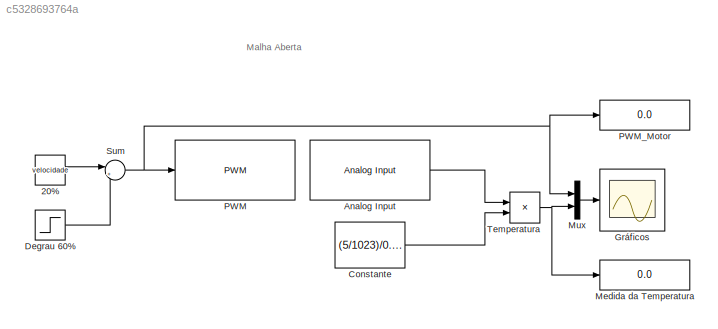
MODEL slx_c5328693764a
KIND model
CONFIG AbsTol = auto
CONFIG FixedStep = auto
CONFIG MaxStep = auto
CONFIG MinStep = auto
CONFIG RelTol = 1e-3
CONFIG SampleTimeConstraint = Unconstrained
CONFIG Solver = ode45
CONFIG SolverMode = Auto
CONFIG SolverName = ode45
CONFIG StartTime = 0.0
CONFIG StopTime = inf
BLOCK [Constant] 20%
  Value = velocidade
  VectorParams1D = off
BLOCK [Reference] Analog Input  REF=arduinolib/Analog Input
  Ports = [0, 1]
  SourceBlock = arduinolib/Analog Input
  SourceType = Arduino Analog Input
  blockPlatform = arduino
  pinNumber = 0
  sampleTime = 0.01
BLOCK [Constant] Constante
  Value = (5/1023)/0.01
BLOCK [Step] Degrau 60%
  After = 102
  SampleTime = 0.01
  Time = 3000
BLOCK [Scope] Gráficos
  Floating = off
  LimitDataPoints = off
  NumInputPorts = 1
  Ports = [1]
  SaveName = Dados_tempo_real
  SaveToWorkspace = on
  ShowLegends = on
  TimeRange = 279.0344752239425
  YMax = 52.67274408772624
  YMin = 36.25489937023825
BLOCK [Display] Medida da Temperatura
  Decimation = 1
  Ports = [1]
BLOCK [Mux] Mux
  DisplayOption = bar
  Inputs = 2
  Ports = [2, 1]
BLOCK [Reference] PWM  REF=arduinolib/PWM
  Ports = [1]
  SourceBlock = arduinolib/PWM
  SourceType = Arduino PWM
  blockPlatform = arduino
  pinNumber = 9
BLOCK [Display] PWM_Motor
  Decimation = 1
  Ports = [1]
BLOCK [Sum] Sum
  IconShape = round
  InputSameDT = off
  Inputs = |++
  OutDataTypeStr = Inherit: Inherit via internal rule
  Ports = [2, 1]
  SaturateOnIntegerOverflow = off
BLOCK [Product] Temperatura
  InputSameDT = off
  OutDataTypeStr = Inherit: Inherit via internal rule
  Ports = [2, 1]
  RndMeth = Floor
  SaturateOnIntegerOverflow = off
ANNOTATION (root): Malha Aberta
LINE 20%:1 -> Sum:1
LINE Analog Input:1 -> Temperatura:1
LINE Constante:1 -> Temperatura:2
LINE Degrau 60%:1 -> Sum:2
LINE Mux:1 -> Gráficos:1
NET Sum:1 -> Mux:1, PWM:1, PWM_Motor:1
NET Temperatura:1 -> Medida da Temperatura:1, Mux:2
note: NET lines group one-source signal fan-out (src -> all destinations, sorted); 1:1 wires keep LINE
